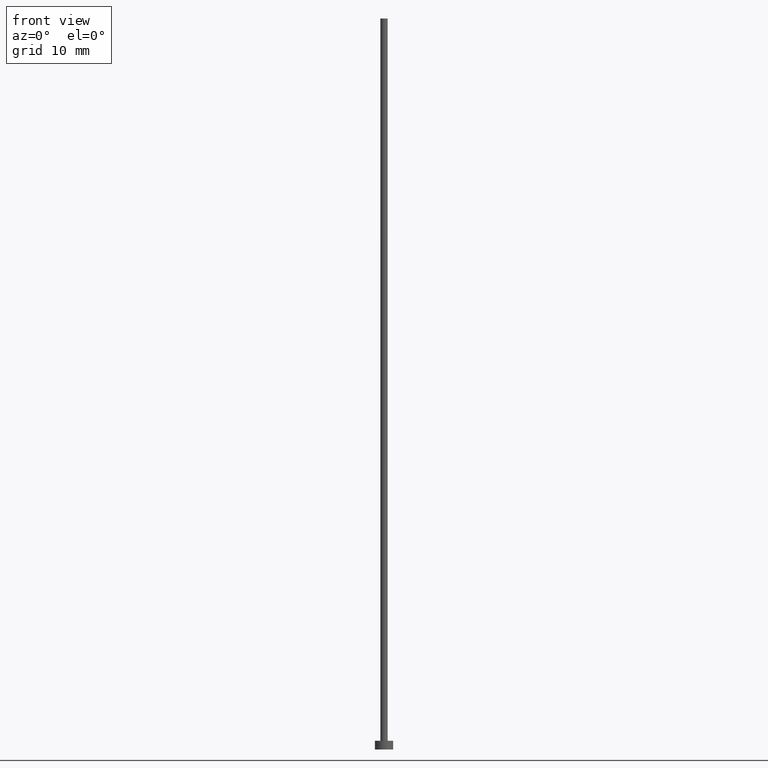
[diagram: clean part render]
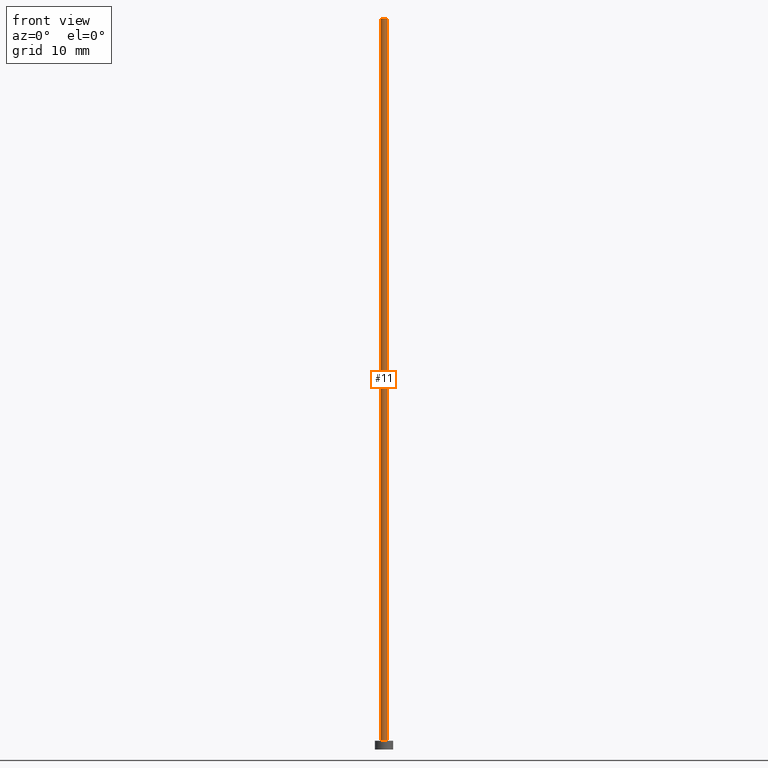
[diagram: same view with one face highlighted and labeled with its STEP entity id]
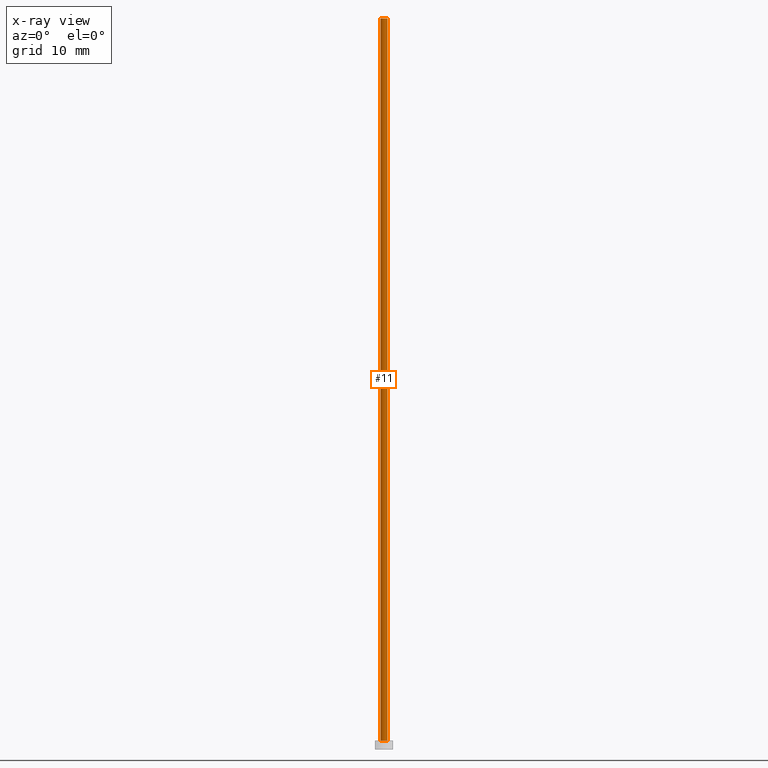
[diagram: x-ray of the same camera — body ghosted, the highlighted face saturated]
A machine part, front view. The second image highlights one B-rep face of the part: STEP entity #11.
The next image is the same camera in x-ray: the body ghosted, the highlighted face saturated — about 0% of this face is hidden behind the body in this view.
In plain terms, the highlighted cylindrical surface (edge-blend (fillet) strip) has radius 0.5 mm, axis along (-0, -0, -1).
Its self-contained STEP definition (entity closure, byte-faithful):
#7 = DIRECTION ( 'NONE',  ( 1.000000000000000000, 0.000000000000000000, 0.000000000000000000 ) ) ;
#11 = ADVANCED_FACE ( 'NONE', ( #219 ), #42, .T. ) ;
#14 = ORIENTED_EDGE ( 'NONE', *, *, #182, .T. ) ;
#18 = DIRECTION ( 'NONE',  ( -0.000000000000000000, -0.000000000000000000, -1.000000000000000000 ) ) ;
#25 = CARTESIAN_POINT ( 'NONE',  ( 0.000000000000000000, 0.000000000000000000, 1.199999999999999956 ) ) ;
#36 = CARTESIAN_POINT ( 'NONE',  ( 0.5000000000000000000, 6.123233995736766036E-17, 100.0000000000000000 ) ) ;
#39 = DIRECTION ( 'NONE',  ( -0.000000000000000000, -0.000000000000000000, -1.000000000000000000 ) ) ;
#42 = CYLINDRICAL_SURFACE ( 'NONE', #94, 0.5000000000000000000 ) ;
#50 = AXIS2_PLACEMENT_3D ( 'NONE', #25, #187, #7 ) ;
#52 = ORIENTED_EDGE ( 'NONE', *, *, #231, .T. ) ;
#58 = CARTESIAN_POINT ( 'NONE',  ( -0.5000000000000000000, 0.000000000000000000, 1.199999999999999956 ) ) ;
#61 = DIRECTION ( 'NONE',  ( 0.000000000000000000, 0.000000000000000000, 1.000000000000000000 ) ) ;
#66 = VECTOR ( 'NONE', #18, 1000.000000000000000 ) ;
#80 = VERTEX_POINT ( 'NONE', #85 ) ;
#83 = DIRECTION ( 'NONE',  ( -0.000000000000000000, -0.000000000000000000, -1.000000000000000000 ) ) ;
#85 = CARTESIAN_POINT ( 'NONE',  ( 0.5000000000000000000, 6.123233995736766036E-17, 1.199999999999999956 ) ) ;
#86 = LINE ( 'NONE', #213, #249 ) ;
#91 = AXIS2_PLACEMENT_3D ( 'NONE', #244, #61, #143 ) ;
#92 = EDGE_LOOP ( 'NONE', ( #179, #154, #14, #52 ) ) ;
#94 = AXIS2_PLACEMENT_3D ( 'NONE', #105, #39, #119 ) ;
#97 = CIRCLE ( 'NONE', #91, 0.5000000000000000000 ) ;
#105 = CARTESIAN_POINT ( 'NONE',  ( 0.000000000000000000, 0.000000000000000000, 100.0000000000000000 ) ) ;
#107 = VERTEX_POINT ( 'NONE', #160 ) ;
#119 = DIRECTION ( 'NONE',  ( -1.000000000000000000, 0.000000000000000000, 0.000000000000000000 ) ) ;
#143 = DIRECTION ( 'NONE',  ( 1.000000000000000000, 0.000000000000000000, 0.000000000000000000 ) ) ;
#146 = VERTEX_POINT ( 'NONE', #58 ) ;
#154 = ORIENTED_EDGE ( 'NONE', *, *, #178, .F. ) ;
#160 = CARTESIAN_POINT ( 'NONE',  ( 0.5000000000000000000, 6.123233995736766036E-17, 100.0000000000000000 ) ) ;
#161 = EDGE_CURVE ( 'NONE', #107, #80, #216, .T. ) ;
#178 = EDGE_CURVE ( 'NONE', #223, #107, #97, .T. ) ;
#179 = ORIENTED_EDGE ( 'NONE', *, *, #161, .F. ) ;
#182 = EDGE_CURVE ( 'NONE', #223, #146, #86, .T. ) ;
#187 = DIRECTION ( 'NONE',  ( 0.000000000000000000, 0.000000000000000000, 1.000000000000000000 ) ) ;
#192 = CIRCLE ( 'NONE', #50, 0.5000000000000000000 ) ;
#213 = CARTESIAN_POINT ( 'NONE',  ( -0.5000000000000000000, 0.000000000000000000, 100.0000000000000000 ) ) ;
#216 = LINE ( 'NONE', #36, #66 ) ;
#219 = FACE_OUTER_BOUND ( 'NONE', #92, .T. ) ;
#223 = VERTEX_POINT ( 'NONE', #232 ) ;
#231 = EDGE_CURVE ( 'NONE', #146, #80, #192, .T. ) ;
#232 = CARTESIAN_POINT ( 'NONE',  ( -0.5000000000000000000, 0.000000000000000000, 100.0000000000000000 ) ) ;
#244 = CARTESIAN_POINT ( 'NONE',  ( 0.000000000000000000, 0.000000000000000000, 100.0000000000000000 ) ) ;
#249 = VECTOR ( 'NONE', #83, 1000.000000000000000 ) ;